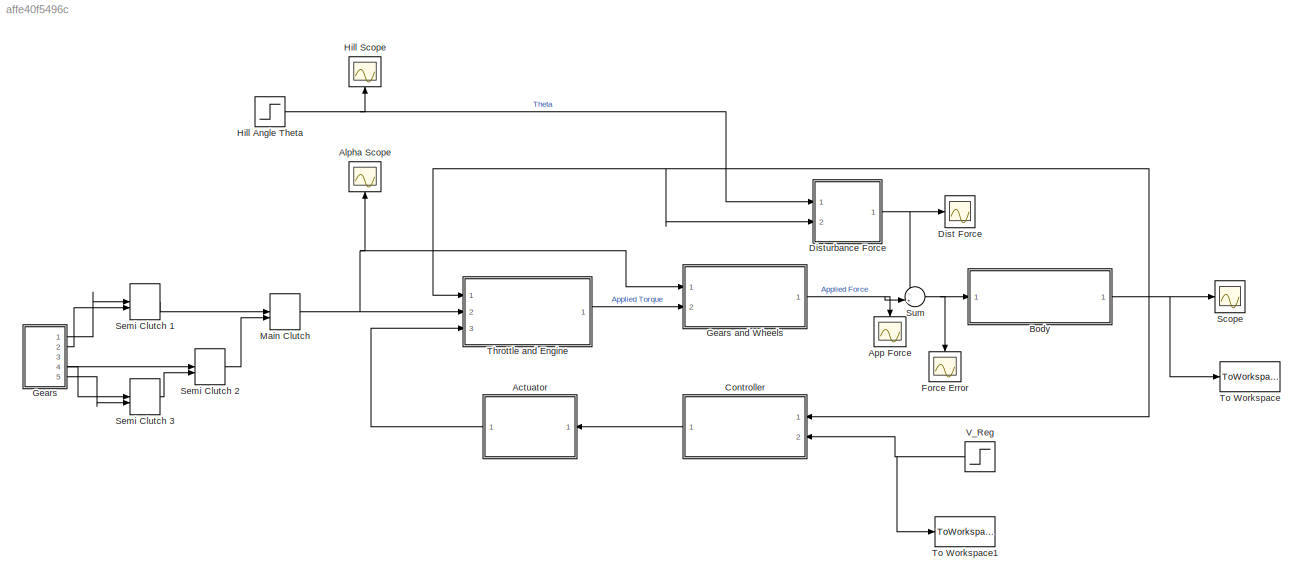
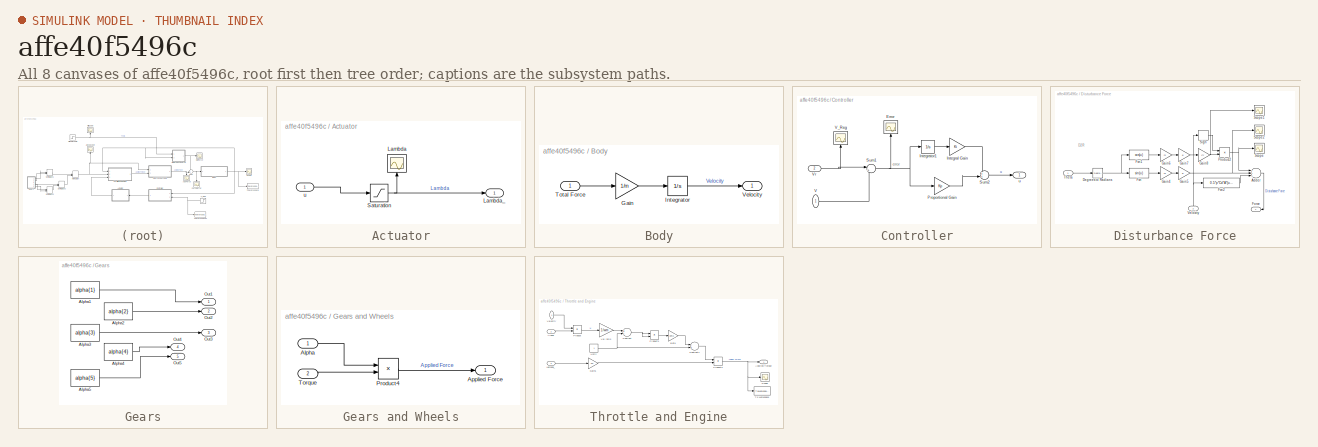
[diagram: thumbnail index - all 8 canvases of the model, root first then tree order]
MODEL slx_affe40f5496c
KIND model
CONFIG AbsTol = auto
CONFIG FixedStep = auto
CONFIG MaxStep = 0.005
CONFIG MinStep = auto
CONFIG RelTol = 1e-3
CONFIG SampleTimeConstraint = Unconstrained
CONFIG Solver = ode45
CONFIG SolverMode = Auto
CONFIG SolverName = ode45
CONFIG StartTime = 0.0
CONFIG StopTime = 50
BLOCK [SubSystem] Actuator
  Ports = [1, 1]
  RequestExecContextInheritance = off
BLOCK [Scope] Actuator/Lambda
  Floating = off
  NumInputPorts = 1
  Ports = [1]
  SaveName = ScopeData4
BLOCK [Outport] Actuator/Lambda_
  IconDisplay = Port number
BLOCK [Saturate] Actuator/Saturation
  InputPortMap = u0
  LowerLimit = 0
  Ports = [1, 1]
  UpperLimit = 1
BLOCK [Inport] Actuator/u
  IconDisplay = Port number
BLOCK [Scope] Alpha Scope
  Floating = off
  NumInputPorts = 1
  Ports = [1]
  SaveName = ScopeData3
BLOCK [Scope] App Force
  Floating = off
  NumInputPorts = 1
  Ports = [1]
  SaveName = ScopeData7
BLOCK [SubSystem] Body
  Ports = [1, 1]
  RequestExecContextInheritance = off
BLOCK [Gain] Body/Gain
  Gain = 1/m
  OutDataTypeStr = Inherit: Inherit via internal rule
  ParamDataTypeStr = Inherit: Inherit via internal rule
  SaturateOnIntegerOverflow = off
BLOCK [Integrator] Body/Integrator
  Ports = [1, 1]
BLOCK [Inport] Body/Total Force
  IconDisplay = Port number
BLOCK [Outport] Body/Velocity
  IconDisplay = Port number
BLOCK [SubSystem] Controller
  Ports = [2, 1]
  RequestExecContextInheritance = off
BLOCK [Scope] Controller/Error
  Floating = off
  NumInputPorts = 1
  Ports = [1]
  SaveName = ScopeData1
BLOCK [Gain] Controller/Integral Gain
  Gain = Ki
  OutDataTypeStr = Inherit: Inherit via internal rule
  ParamDataTypeStr = Inherit: Inherit via internal rule
  SaturateOnIntegerOverflow = off
BLOCK [Integrator] Controller/Integrator1
  Ports = [1, 1]
BLOCK [Gain] Controller/Proportional Gain
  Gain = Kp
  OutDataTypeStr = Inherit: Inherit via internal rule
  ParamDataTypeStr = Inherit: Inherit via internal rule
  SaturateOnIntegerOverflow = off
BLOCK [Sum] Controller/Sum1
  IconShape = round
  InputSameDT = off
  Inputs = |+-
  OutDataTypeStr = Inherit: Inherit via internal rule
  Ports = [2, 1]
  SaturateOnIntegerOverflow = off
BLOCK [Sum] Controller/Sum2
  IconShape = round
  InputSameDT = off
  Inputs = ++|
  OutDataTypeStr = Inherit: Inherit via internal rule
  Ports = [2, 1]
  SaturateOnIntegerOverflow = off
BLOCK [Inport] Controller/V
  IconDisplay = Port number
BLOCK [Scope] Controller/V_Reg 
  Floating = off
  NumInputPorts = 1
  Ports = [1]
  SaveName = ScopeData2
  ZoomMode = yonly
BLOCK [Inport] Controller/Vr
  IconDisplay = Port number
  Port = 2
BLOCK [Outport] Controller/u
  IconDisplay = Port number
BLOCK [Scope] Dist Force
  Floating = off
  LimitDataPoints = off
  NumInputPorts = 1
  Ports = [1]
  SaveName = ScopeData6
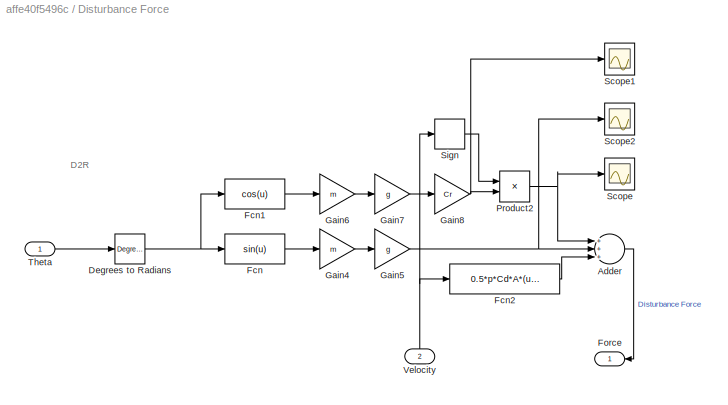
BLOCK [SubSystem] Disturbance Force
  Ports = [2, 1]
  RequestExecContextInheritance = off
BLOCK [Sum] Disturbance Force/Adder
  InputSameDT = off
  Inputs = +++
  OutDataTypeStr = Inherit: Inherit via internal rule
  Ports = [3, 1]
  SaturateOnIntegerOverflow = off
BLOCK [Reference] Disturbance Force/Degrees to Radians  REF=simulink_extras/Transformations/Degrees to
Radians
  Ports = [1, 1]
  SourceBlock = simulink_extras/Transformations/Degrees to\nRadians
  SourceType = DegreesToRadians
BLOCK [Fcn] Disturbance Force/Fcn
  Expr = sin(u)
BLOCK [Fcn] Disturbance Force/Fcn1
  Expr = cos(u)
BLOCK [Fcn] Disturbance Force/Fcn2
  Expr = 0.5*p*Cd*A*(u)^2
BLOCK [Outport] Disturbance Force/Force
  IconDisplay = Port number
BLOCK [Gain] Disturbance Force/Gain4
  Gain = m
  OutDataTypeStr = Inherit: Inherit via internal rule
  ParamDataTypeStr = Inherit: Inherit via internal rule
  SaturateOnIntegerOverflow = off
BLOCK [Gain] Disturbance Force/Gain5
  Gain = g
  OutDataTypeStr = Inherit: Inherit via internal rule
  ParamDataTypeStr = Inherit: Inherit via internal rule
  SaturateOnIntegerOverflow = off
BLOCK [Gain] Disturbance Force/Gain6
  Gain = m
  OutDataTypeStr = Inherit: Inherit via internal rule
  ParamDataTypeStr = Inherit: Inherit via internal rule
  SaturateOnIntegerOverflow = off
BLOCK [Gain] Disturbance Force/Gain7
  Gain = g
  OutDataTypeStr = Inherit: Inherit via internal rule
  ParamDataTypeStr = Inherit: Inherit via internal rule
  SaturateOnIntegerOverflow = off
BLOCK [Gain] Disturbance Force/Gain8
  Gain = Cr
  OutDataTypeStr = Inherit: Inherit via internal rule
  ParamDataTypeStr = Inherit: Inherit via internal rule
  SaturateOnIntegerOverflow = off
BLOCK [Product] Disturbance Force/Product2
  InputSameDT = off
  OutDataTypeStr = Inherit: Inherit via internal rule
  Ports = [2, 1]
  RndMeth = Floor
  SaturateOnIntegerOverflow = off
BLOCK [Scope] Disturbance Force/Scope
  Floating = off
  LimitDataPoints = off
  NumInputPorts = 1
  Ports = [1]
  SaveName = ScopeData9
BLOCK [Scope] Disturbance Force/Scope1
  Floating = off
  LimitDataPoints = off
  NumInputPorts = 1
  Ports = [1]
  SaveName = ScopeData10
BLOCK [Scope] Disturbance Force/Scope2
  Floating = off
  LimitDataPoints = off
  NumInputPorts = 1
  Ports = [1]
  SaveName = ScopeData11
BLOCK [Signum] Disturbance Force/Sign
BLOCK [Inport] Disturbance Force/Theta
  IconDisplay = Port number
BLOCK [Inport] Disturbance Force/Velocity
  IconDisplay = Port number
  Port = 2
BLOCK [Scope] Force Error
  Floating = off
  NumInputPorts = 1
  Ports = [1]
  SaveName = ScopeData8
BLOCK [SubSystem] Gears
  Ports = [0, 5]
  RequestExecContextInheritance = off
BLOCK [SubSystem] Gears and Wheels
  Ports = [2, 1]
  RequestExecContextInheritance = off
BLOCK [Inport] Gears and Wheels/Alpha
  IconDisplay = Port number
BLOCK [Outport] Gears and Wheels/Applied Force
  IconDisplay = Port number
BLOCK [Product] Gears and Wheels/Product4
  InputSameDT = off
  OutDataTypeStr = Inherit: Inherit via internal rule
  Ports = [2, 1]
  RndMeth = Floor
  SaturateOnIntegerOverflow = off
BLOCK [Inport] Gears and Wheels/Torque
  IconDisplay = Port number
  Port = 2
BLOCK [Constant] Gears/Alpha1
  Value = alpha{1}
BLOCK [Constant] Gears/Alpha2
  Value = alpha{2}
BLOCK [Constant] Gears/Alpha3
  Value = alpha{3}
BLOCK [Constant] Gears/Alpha4
  Value = alpha{4}
BLOCK [Constant] Gears/Alpha5
  Value = alpha{5}
BLOCK [Outport] Gears/Out1
  IconDisplay = Port number
BLOCK [Outport] Gears/Out2
  IconDisplay = Port number
  Port = 2
BLOCK [Outport] Gears/Out3
  IconDisplay = Port number
  Port = 3
BLOCK [Outport] Gears/Out4
  IconDisplay = Port number
  Port = 4
BLOCK [Outport] Gears/Out5
  IconDisplay = Port number
  Port = 5
BLOCK [Step] Hill Angle Theta
  After = 5
  SampleTime = 0
  Time = 25
BLOCK [Scope] Hill Scope
  Floating = off
  LimitDataPoints = off
  NumInputPorts = 1
  Ports = [1]
  SaveName = ScopeData5
  ZoomMode = yonly
BLOCK [ManualSwitch] Main Clutch
BLOCK [Scope] Scope
  Floating = off
  LimitDataPoints = off
  NumInputPorts = 1
  Ports = [1]
BLOCK [ManualSwitch] Semi Clutch 1
  CurrentSetting = 0
BLOCK [ManualSwitch] Semi Clutch 2
BLOCK [ManualSwitch] Semi Clutch 3
BLOCK [Sum] Sum
  IconShape = round
  InputSameDT = off
  Inputs = -+|
  OutDataTypeStr = Inherit: Inherit via internal rule
  Ports = [2, 1]
  SaturateOnIntegerOverflow = off
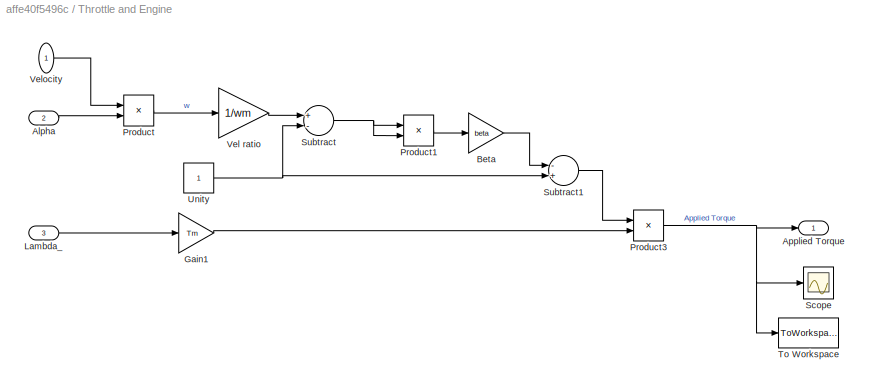
BLOCK [SubSystem] Throttle and Engine
  Ports = [3, 1]
  RequestExecContextInheritance = off
BLOCK [Inport] Throttle and Engine/Alpha
  IconDisplay = Port number
  Port = 2
BLOCK [Outport] Throttle and Engine/Applied Torque
  IconDisplay = Port number
BLOCK [Gain] Throttle and Engine/Beta
  Gain = beta
  OutDataTypeStr = Inherit: Inherit via internal rule
  ParamDataTypeStr = Inherit: Inherit via internal rule
  SaturateOnIntegerOverflow = off
BLOCK [Gain] Throttle and Engine/Gain1
  Gain = Tm
  OutDataTypeStr = Inherit: Inherit via internal rule
  ParamDataTypeStr = Inherit: Inherit via internal rule
  SaturateOnIntegerOverflow = off
BLOCK [Inport] Throttle and Engine/Lambda_
  IconDisplay = Port number
  Port = 3
BLOCK [Product] Throttle and Engine/Product
  InputSameDT = off
  OutDataTypeStr = Inherit: Inherit via internal rule
  Ports = [2, 1]
  RndMeth = Floor
  SaturateOnIntegerOverflow = off
BLOCK [Product] Throttle and Engine/Product1
  InputSameDT = off
  OutDataTypeStr = Inherit: Inherit via internal rule
  Ports = [2, 1]
  RndMeth = Floor
  SaturateOnIntegerOverflow = off
BLOCK [Product] Throttle and Engine/Product3
  InputSameDT = off
  OutDataTypeStr = Inherit: Inherit via internal rule
  Ports = [2, 1]
  RndMeth = Floor
  SaturateOnIntegerOverflow = off
BLOCK [Scope] Throttle and Engine/Scope
  Floating = off
  LimitDataPoints = off
  NumInputPorts = 1
  Ports = [1]
  SaveName = ScopeData12
BLOCK [Sum] Throttle and Engine/Subtract
  InputSameDT = off
  Inputs = +-
  OutDataTypeStr = Inherit: Inherit via internal rule
  Ports = [2, 1]
  SaturateOnIntegerOverflow = off
BLOCK [Sum] Throttle and Engine/Subtract1
  InputSameDT = off
  Inputs = -+
  OutDataTypeStr = Inherit: Inherit via internal rule
  Ports = [2, 1]
  SaturateOnIntegerOverflow = off
BLOCK [ToWorkspace] Throttle and Engine/To Workspace
  FixptAsFi = on
  MaxDataPoints = inf
  Ports = [1]
  SampleTime = -1
  Save2DSignal = 3-D array (concatenate along third dimension)
  SaveFormat = Timeseries
  VariableName = AppT
BLOCK [Constant] Throttle and Engine/Unity
BLOCK [Gain] Throttle and Engine/Vel ratio
  Gain = 1/wm
  OutDataTypeStr = Inherit: Inherit via internal rule
  ParamDataTypeStr = Inherit: Inherit via internal rule
  SaturateOnIntegerOverflow = off
BLOCK [Inport] Throttle and Engine/Velocity
  IconDisplay = Port number
BLOCK [ToWorkspace] To Workspace
  FixptAsFi = on
  MaxDataPoints = inf
  Ports = [1]
  SampleTime = -1
  Save2DSignal = 3-D array (concatenate along third dimension)
  SaveFormat = Timeseries
  VariableName = V
BLOCK [ToWorkspace] To Workspace1
  FixptAsFi = on
  MaxDataPoints = inf
  Ports = [1]
  SampleTime = -1
  Save2DSignal = 3-D array (concatenate along third dimension)
  SaveFormat = Timeseries
  VariableName = Vr
BLOCK [Step] V_Reg
  After = 20
  Before = 20
  SampleTime = 0
  Time = 0
ANNOTATION Controller: error
ANNOTATION Disturbance Force: D2R
NET Actuator/Saturation:1 -> Actuator/Lambda:1, Actuator/Lambda_:1
LINE Actuator/u:1 -> Actuator/Saturation:1
LINE Actuator:1 -> Throttle and Engine:3
LINE Body/Gain:1 -> Body/Integrator:1
LINE Body/Integrator:1 -> Body/Velocity:1
LINE Body/Total Force:1 -> Body/Gain:1
NET Body:1 -> Controller:1, Disturbance Force:2, Scope:1, Throttle and Engine:1, To Workspace:1
LINE Controller/Integral Gain:1 -> Controller/Sum2:1
LINE Controller/Integrator1:1 -> Controller/Integral Gain:1
LINE Controller/Proportional Gain:1 -> Controller/Sum2:2
NET Controller/Sum1:1 -> Controller/Error:1, Controller/Integrator1:1, Controller/Proportional Gain:1
LINE Controller/Sum2:1 -> Controller/u:1
LINE Controller/V:1 -> Controller/Sum1:2
NET Controller/Vr:1 -> Controller/Sum1:1, Controller/V_Reg :1
LINE Controller:1 -> Actuator:1
LINE Disturbance Force/Adder:1 -> Disturbance Force/Force:1
NET Disturbance Force/Degrees to Radians:1 -> Disturbance Force/Fcn1:1, Disturbance Force/Fcn:1
LINE Disturbance Force/Fcn1:1 -> Disturbance Force/Gain6:1
LINE Disturbance Force/Fcn2:1 -> Disturbance Force/Adder:3
LINE Disturbance Force/Fcn:1 -> Disturbance Force/Gain4:1
LINE Disturbance Force/Gain4:1 -> Disturbance Force/Gain5:1
NET Disturbance Force/Gain5:1 -> Disturbance Force/Adder:2, Disturbance Force/Scope2:1
LINE Disturbance Force/Gain6:1 -> Disturbance Force/Gain7:1
LINE Disturbance Force/Gain7:1 -> Disturbance Force/Gain8:1
NET Disturbance Force/Gain8:1 -> Disturbance Force/Product2:2, Disturbance Force/Scope1:1
NET Disturbance Force/Product2:1 -> Disturbance Force/Adder:1, Disturbance Force/Scope:1
LINE Disturbance Force/Sign:1 -> Disturbance Force/Product2:1
LINE Disturbance Force/Theta:1 -> Disturbance Force/Degrees to Radians:1
NET Disturbance Force/Velocity:1 -> Disturbance Force/Fcn2:1, Disturbance Force/Sign:1
NET Disturbance Force:1 -> Dist Force:1, Sum:1
LINE Gears and Wheels/Alpha:1 -> Gears and Wheels/Product4:1
LINE Gears and Wheels/Product4:1 -> Gears and Wheels/Applied Force:1
LINE Gears and Wheels/Torque:1 -> Gears and Wheels/Product4:2
NET Gears and Wheels:1 -> App Force:1, Sum:2
LINE Gears/Alpha1:1 -> Gears/Out1:1
LINE Gears/Alpha2:1 -> Gears/Out2:1
LINE Gears/Alpha3:1 -> Gears/Out3:1
LINE Gears/Alpha4:1 -> Gears/Out4:1
LINE Gears/Alpha5:1 -> Gears/Out5:1
LINE Gears:1 -> Semi Clutch 1:1
LINE Gears:2 -> Semi Clutch 1:2
LINE Gears:3 -> Semi Clutch 2:1
LINE Gears:4 -> Semi Clutch 3:1
LINE Gears:5 -> Semi Clutch 3:2
NET Hill Angle Theta:1 -> Disturbance Force:1, Hill Scope:1
NET Main Clutch:1 -> Alpha Scope:1, Gears and Wheels:1, Throttle and Engine:2
LINE Semi Clutch 1:1 -> Main Clutch:1
LINE Semi Clutch 2:1 -> Main Clutch:2
LINE Semi Clutch 3:1 -> Semi Clutch 2:2
NET Sum:1 -> Body:1, Force Error:1
LINE Throttle and Engine/Alpha:1 -> Throttle and Engine/Product:2
LINE Throttle and Engine/Beta:1 -> Throttle and Engine/Subtract1:1
LINE Throttle and Engine/Gain1:1 -> Throttle and Engine/Product3:2
LINE Throttle and Engine/Lambda_:1 -> Throttle and Engine/Gain1:1
LINE Throttle and Engine/Product1:1 -> Throttle and Engine/Beta:1
NET Throttle and Engine/Product3:1 -> Throttle and Engine/Applied Torque:1, Throttle and Engine/Scope:1, Throttle and Engine/To Workspace:1
LINE Throttle and Engine/Product:1 -> Throttle and Engine/Vel ratio:1
LINE Throttle and Engine/Subtract1:1 -> Throttle and Engine/Product3:1
NET Throttle and Engine/Subtract:1 -> Throttle and Engine/Product1:1, Throttle and Engine/Product1:2
NET Throttle and Engine/Unity:1 -> Throttle and Engine/Subtract1:2, Throttle and Engine/Subtract:2
LINE Throttle and Engine/Vel ratio:1 -> Throttle and Engine/Subtract:1
LINE Throttle and Engine/Velocity:1 -> Throttle and Engine/Product:1
LINE Throttle and Engine:1 -> Gears and Wheels:2
NET V_Reg:1 -> Controller:2, To Workspace1:1
note: NET lines group one-source signal fan-out (src -> all destinations, sorted); 1:1 wires keep LINE
